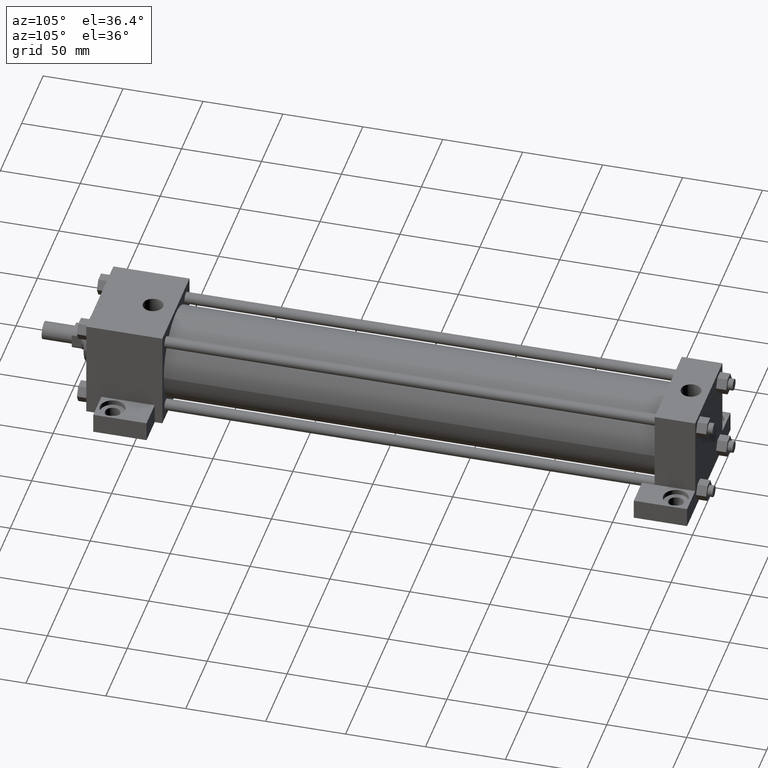
[diagram: clean part render]
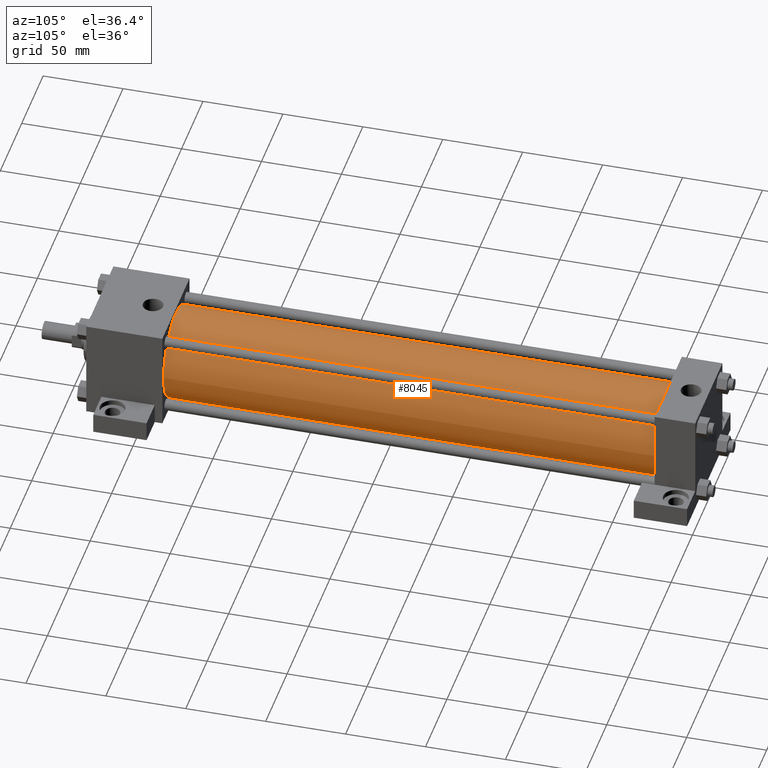
[diagram: same view with one face highlighted and labeled with its STEP entity id]
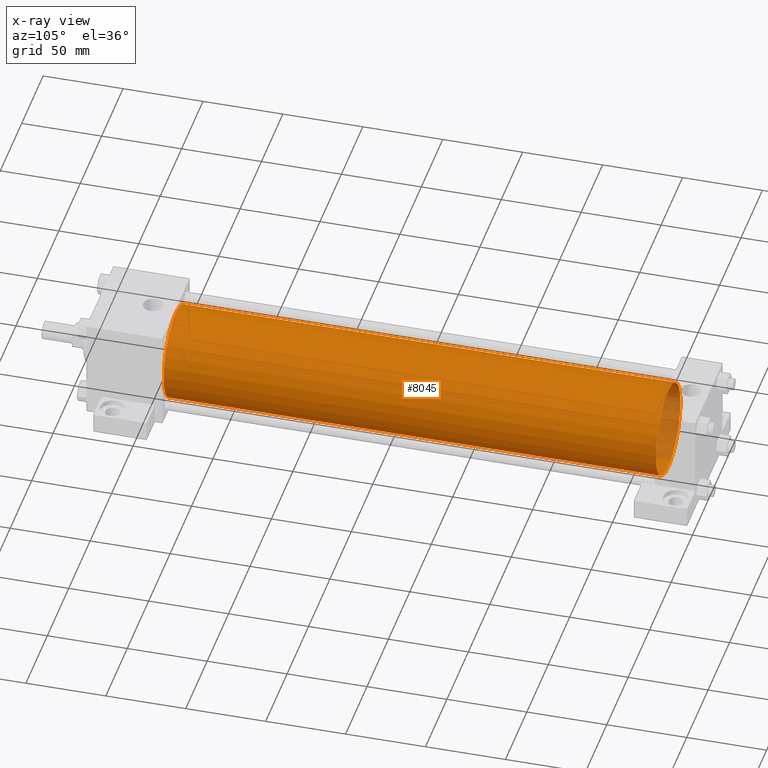
[diagram: x-ray of the same camera — body ghosted, the highlighted face saturated]
A machine part, auxiliary view. The second image highlights one B-rep face of the part: STEP entity #8045.
The next image is the same camera in x-ray: the body ghosted, the highlighted face saturated — about 2% of this face is hidden behind the body in this view.
In plain terms, the highlighted cylindrical surface (bore or boss wall) has radius 28.575 mm, axis along (0, -1, 0).
Its self-contained STEP definition (entity closure, byte-faithful):
#1238=EDGE_CURVE('',#1244,#1244,#1239,.T.);
#1239=CIRCLE('',#1240,2.857500000E+001);
#1240=AXIS2_PLACEMENT_3D('',#1241,#1242,#1243);
#1241=CARTESIAN_POINT('',(0.000000000E+000,6.350000000E+001,0.000000000E+000));
#1242=DIRECTION('',(0.0E+000,1.0E+000,0.0E+000));
#1243=DIRECTION('',(-1.0E+000,0.0E+000,0.0E+000));
#1244=VERTEX_POINT('',#1245);
#1245=CARTESIAN_POINT('',(-2.857500000E+001,6.350000000E+001,0.000000000E+000));
#2765=FACE_OUTER_BOUND('',#2767,.T.);
#2766=FACE_BOUND('',#2768,.T.);
#2767=EDGE_LOOP('',(#2769));
#2768=EDGE_LOOP('',(#2778));
#2769=ORIENTED_EDGE('',*,*,#2770,.F.);
#2770=EDGE_CURVE('',#2776,#2776,#2771,.T.);
#2771=CIRCLE('',#2772,2.857500000E+001);
#2772=AXIS2_PLACEMENT_3D('',#2773,#2774,#2775);
#2773=CARTESIAN_POINT('',(0.000000000E+000,3.714750000E+002,0.000000000E+000));
#2774=DIRECTION('',(0.0E+000,1.0E+000,0.0E+000));
#2775=DIRECTION('',(1.0E+000,0.0E+000,0.0E+000));
#2776=VERTEX_POINT('',#2777);
#2777=CARTESIAN_POINT('',(2.857500000E+001,3.714750000E+002,0.000000000E+000));
#2778=ORIENTED_EDGE('',*,*,#1238,.T.);
#2779=CYLINDRICAL_SURFACE('',#2780,2.857500000E+001);
#2780=AXIS2_PLACEMENT_3D('',#2781,#2782,#2783);
#2781=CARTESIAN_POINT('',(0.000000000E+000,3.714750000E+002,0.000000000E+000));
#2782=DIRECTION('',(0.0E+000,-1.0E+000,0.0E+000));
#2783=DIRECTION('',(0.0E+000,0.0E+000,-1.0E+000));
#8045=ADVANCED_FACE('',(#2765,#2766),#2779,.T.);